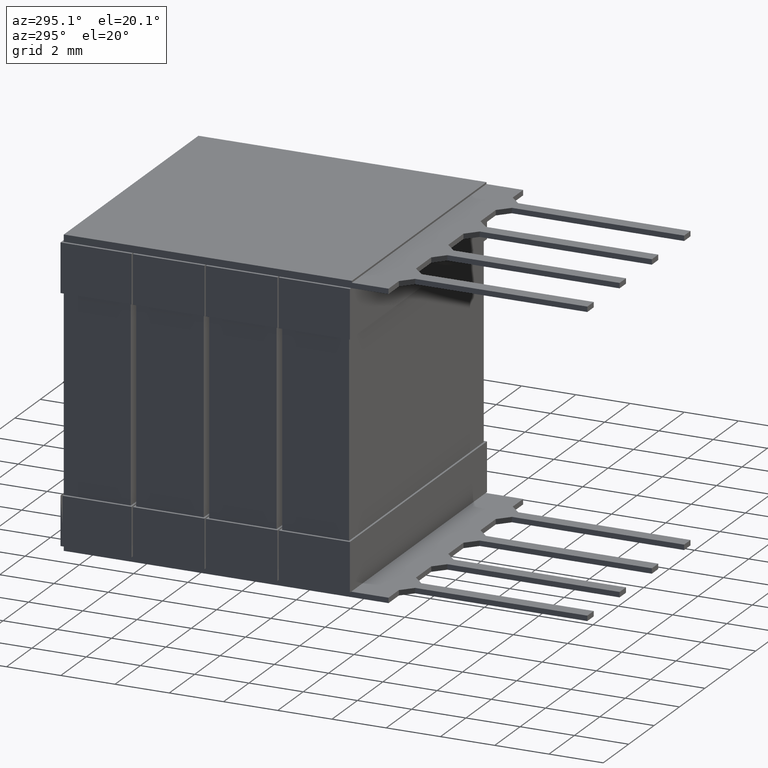
[diagram: clean part render]
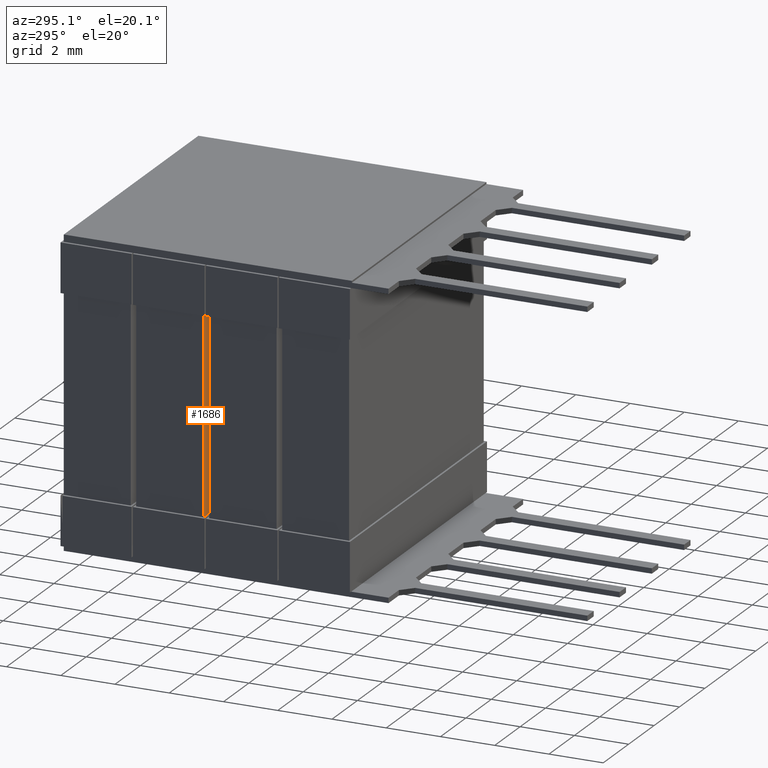
[diagram: same view with one face highlighted and labeled with its STEP entity id]
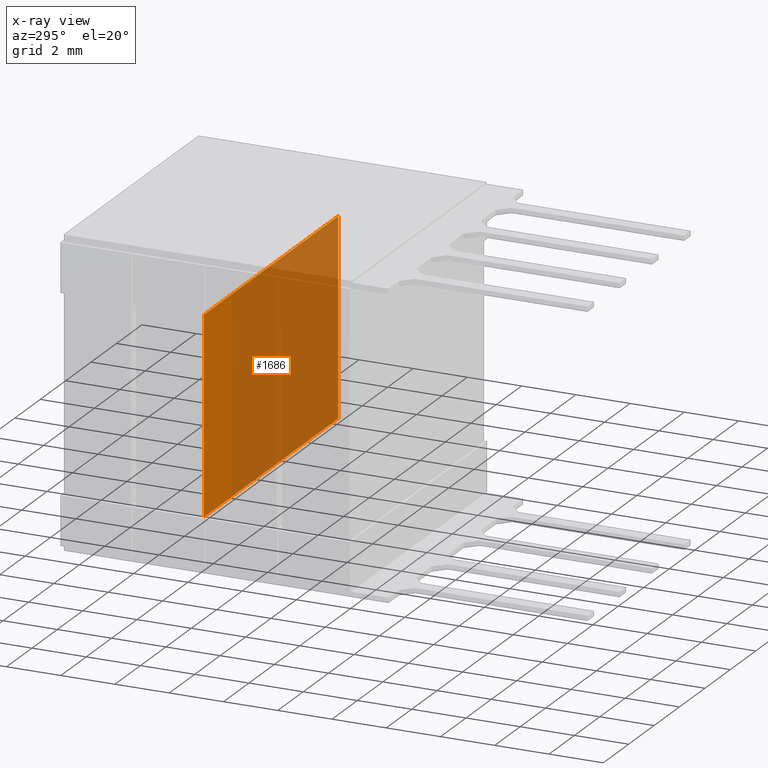
[diagram: x-ray of the same camera — body ghosted, the highlighted face saturated]
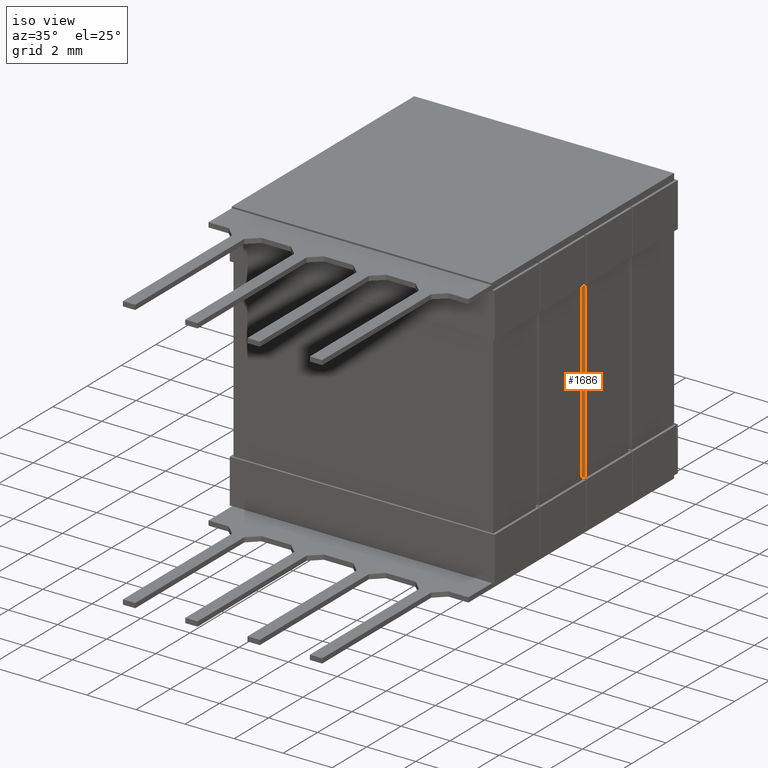
[diagram: same view with one face highlighted and labeled with its STEP entity id]
A machine part, auxiliary view. The second image highlights one B-rep face of the part: STEP entity #1686.
The next image is the same camera in x-ray: the body ghosted, the highlighted face saturated — about 79% of this face is hidden behind the body in this view.
A second angle (iso view) of the same face is appended — the face is thin or edge-on in the first view.
In plain terms, the highlighted planar face has unit normal (0, 1, 0).
Its self-contained STEP definition (entity closure, byte-faithful):
#83 = ORIENTED_EDGE ( 'NONE', *, *, #143, .F. ) ;
#143 = EDGE_CURVE ( 'NONE', #2064, #6279, #3667, .T. ) ;
#433 = CARTESIAN_POINT ( 'NONE',  ( 0.0000000000000000000, 5.462500000000000400, -8.994999999999999200 ) ) ;
#440 = DIRECTION ( 'NONE',  ( 1.000000000000000000, -0.0000000000000000000, -0.0000000000000000000 ) ) ;
#452 = CARTESIAN_POINT ( 'NONE',  ( 0.0000000000000000000, 5.462499999999998600, -1.800000000000000000 ) ) ;
#476 = VERTEX_POINT ( 'NONE', #4462 ) ;
#602 = VECTOR ( 'NONE', #440, 1000.000000000000000 ) ;
#673 = FACE_OUTER_BOUND ( 'NONE', #6767, .T. ) ;
#1013 = CARTESIAN_POINT ( 'NONE',  ( 0.09999999999998265800, 5.462500000000000400, -8.994999999999999200 ) ) ;
#1124 = VECTOR ( 'NONE', #5532, 1000.000000000000000 ) ;
#1179 = EDGE_CURVE ( 'NONE', #476, #7107, #7013, .T. ) ;
#1484 = ORIENTED_EDGE ( 'NONE', *, *, #6277, .T. ) ;
#1558 = CARTESIAN_POINT ( 'NONE',  ( 10.69500000000000200, 5.462500000000000400, -8.994999999999999200 ) ) ;
#1618 = VECTOR ( 'NONE', #2190, 1000.000000000000000 ) ;
#1670 = ORIENTED_EDGE ( 'NONE', *, *, #1179, .F. ) ;
#1686 = ADVANCED_FACE ( 'NONE', ( #673 ), #2376, .F. ) ;
#2064 = VERTEX_POINT ( 'NONE', #5396 ) ;
#2186 = ORIENTED_EDGE ( 'NONE', *, *, #5709, .F. ) ;
#2190 = DIRECTION ( 'NONE',  ( 0.0000000000000000000, 2.411012475297855500E-016, -1.000000000000000000 ) ) ;
#2311 = LINE ( 'NONE', #452, #602 ) ;
#2376 = PLANE ( 'NONE',  #6168 ) ;
#3557 = VECTOR ( 'NONE', #7308, 1000.000000000000000 ) ;
#3667 = LINE ( 'NONE', #1013, #1124 ) ;
#3683 = DIRECTION ( 'NONE',  ( 0.0000000000000000000, 1.000000000000000000, 2.411012475297855500E-016 ) ) ;
#4462 = CARTESIAN_POINT ( 'NONE',  ( 10.69500000000000200, 5.462499999999999500, -1.799999998505076700 ) ) ;
#5396 = CARTESIAN_POINT ( 'NONE',  ( 0.09999999999998265800, 5.462500000000000400, -8.994999999999999200 ) ) ;
#5408 = CARTESIAN_POINT ( 'NONE',  ( 0.09999999999998265800, 5.462499999999998600, -1.799999998505076700 ) ) ;
#5532 = DIRECTION ( 'NONE',  ( 0.0000000000000000000, -2.411012475297855500E-016, 1.000000000000000000 ) ) ;
#5709 = EDGE_CURVE ( 'NONE', #6279, #476, #2311, .T. ) ;
#6168 = AXIS2_PLACEMENT_3D ( 'NONE', #433, #3683, #6338 ) ;
#6277 = EDGE_CURVE ( 'NONE', #2064, #7107, #6521, .T. ) ;
#6279 = VERTEX_POINT ( 'NONE', #5408 ) ;
#6338 = DIRECTION ( 'NONE',  ( 0.0000000000000000000, -2.411012475297855500E-016, 1.000000000000000000 ) ) ;
#6521 = LINE ( 'NONE', #8005, #3557 ) ;
#6767 = EDGE_LOOP ( 'NONE', ( #83, #1484, #1670, #2186 ) ) ;
#7013 = LINE ( 'NONE', #1558, #1618 ) ;
#7107 = VERTEX_POINT ( 'NONE', #8030 ) ;
#7308 = DIRECTION ( 'NONE',  ( 1.000000000000000000, -0.0000000000000000000, -0.0000000000000000000 ) ) ;
#8005 = CARTESIAN_POINT ( 'NONE',  ( 0.0000000000000000000, 5.462500000000000400, -8.994999999999999200 ) ) ;
#8030 = CARTESIAN_POINT ( 'NONE',  ( 10.69500000000000200, 5.462500000000000400, -8.994999999999999200 ) ) ;